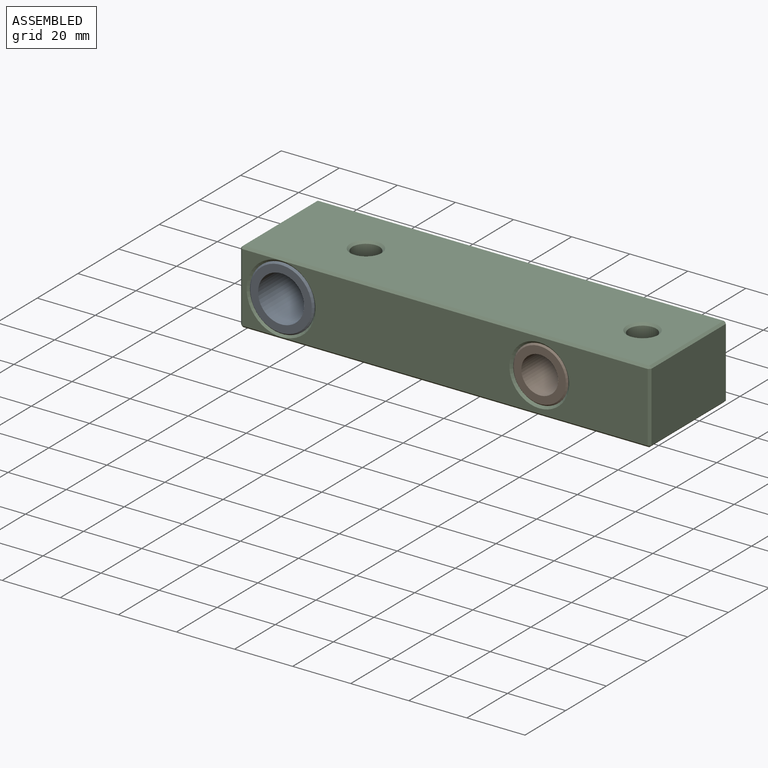
[diagram: assembled view]
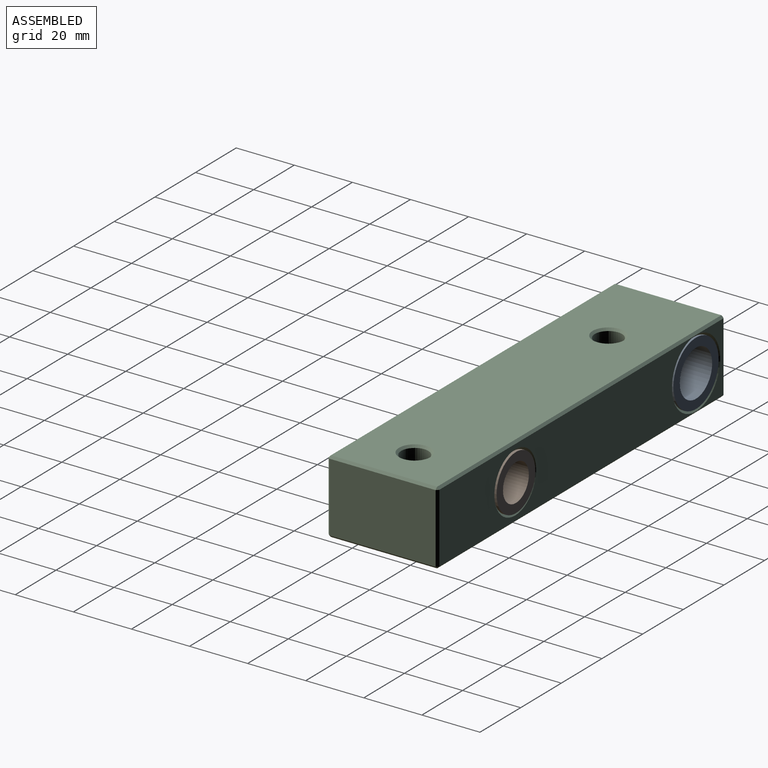
[diagram: assembled view, second angle]
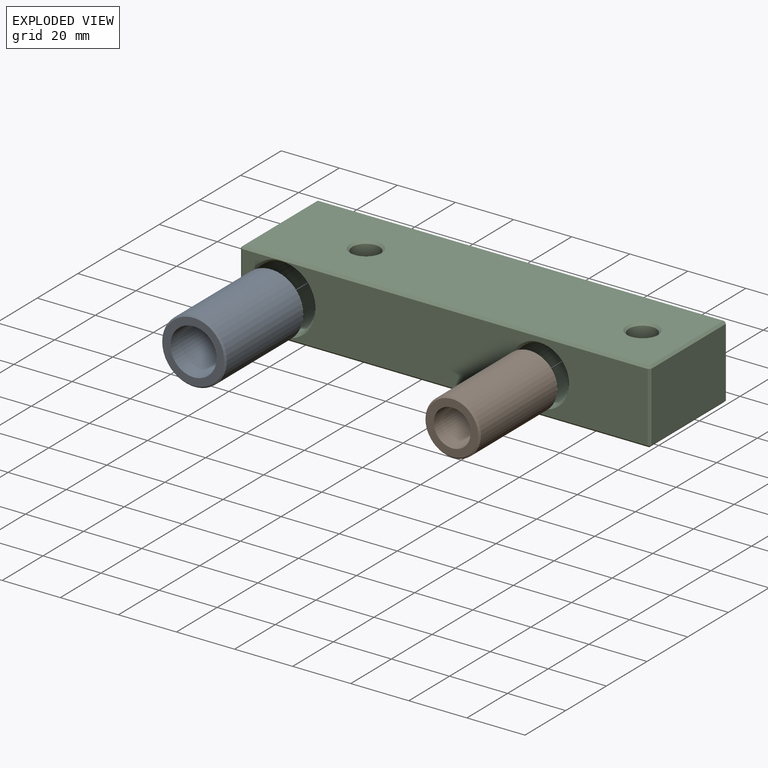
[diagram: exploded view]
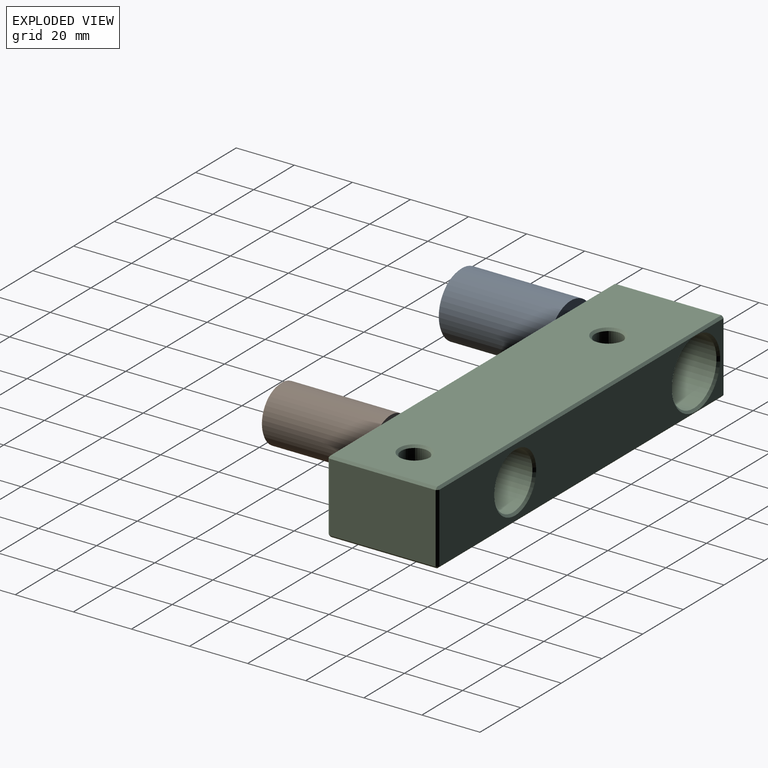
[diagram: exploded view, second angle]
ASSEMBLY  parts=3 mates=2
PART A: 5 faces, bbox 22.2x38.1x22.2 mm
  f0: plane 21.17x21.17mm, normal (0,-1,0), area 153.9mm2, adj f3,f4
  f1: plane 22.23x22.23mm, normal (0,1,0), area 190mm2, adj f2,f3
  f2: cylinder r=11.11mm len=37.57mm, axis (0,1,0), area 2623.3mm2, adj f1,f4
  f3: cylinder r=7.94mm len=38.1mm, axis (0,1,0), area 1900.2mm2, adj f0,f1
  f4: cone r=10.58mm half-angle=45deg, axis (0,1,0), area 51mm2, adj f0,f2
PART B: 5 faces, bbox 19.1x38.1x19.1 mm
  f0: plane 17.99x17.99mm, normal (0,-1,0), area 127.6mm2, adj f3,f4
  f1: plane 19.05x19.05mm, normal (0,1,0), area 158.3mm2, adj f2,f3
  f2: cylinder r=9.53mm len=37.57mm, axis (0,1,0), area 2248.5mm2, adj f1,f4
  f3: cylinder r=6.35mm len=38.1mm, axis (0,1,0), area 1520.1mm2, adj f0,f1
  f4: cone r=9mm half-angle=45deg, axis (0,1,0), area 43.5mm2, adj f0,f2
PART C: 38 faces, bbox 141.3x38.1x25.4 mm
  f0: plane 36.58x23.88mm, normal (-1,0,0), area 873.3mm2, adj f12,f16,f17,f18
  f1: plane 139.76x36.58mm, normal (0,0,-1), area 4926.3mm2, adj f18,f19,f27,f28,f34,f35
  f2: plane 36.58x23.88mm, normal (1,0,0), area 873.3mm2, adj f20,f25,f28,f31
  f3: plane 139.76x36.58mm, normal (0,0,1), area 4926.3mm2, adj f15,f16,f25,f26,f36,f37
  f4: plane 139.76x23.88mm, normal (0,1,0), area 2561.6mm2, adj f10,f11,f17,f26,f27,f31
  f5: plane 139.76x23.88mm, normal (0,-1,0), area 2561.6mm2, adj f12,f15,f19,f20,f32,f33
  f6: cylinder r=11.11mm len=36.58mm, axis (0,-1,0), area 2553.8mm2, adj f11,f33
  f7: cylinder r=9.53mm len=36.58mm, axis (0,-1,0), area 2189mm2, adj f10,f32
  f8: cylinder r=4.67mm len=23.88mm, axis (0,0,1), area 701.1mm2, adj f34,f36
  f9: cylinder r=4.67mm len=23.88mm, axis (0,0,1), area 701.1mm2, adj f35,f37
  f10: cone r=9.53mm half-angle=45deg, axis (0,1,0), area 67.1mm2, adj f4,f7
  f11: cone r=11.11mm half-angle=45deg, axis (0,1,0), area 77.8mm2, adj f4,f6
  f12: plane 23.88x0.76mm, normal (-0.71,-0.71,0), area 25.7mm2, adj f0,f5,f13,f14
  f13: plane 0.76x0.76mm, normal (-0.58,-0.58,0.58), area 0.5mm2, adj f12,f15,f16
  f14: plane 0.76x0.76mm, normal (-0.58,-0.58,-0.58), area 0.5mm2, adj f12,f18,f19
  f15: plane 139.76x0.76mm, normal (0,-0.71,0.71), area 150.6mm2, adj f3,f5,f13,f21
  f16: plane 36.58x0.76mm, normal (-0.71,0,0.71), area 39.4mm2, adj f0,f3,f13,f22
  f17: plane 23.88x0.76mm, normal (-0.71,0.71,0), area 25.7mm2, adj f0,f4,f22,f23
  f18: plane 36.58x0.76mm, normal (-0.71,0,-0.71), area 39.4mm2, adj f0,f1,f14,f23
  f19: plane 139.76x0.76mm, normal (0,-0.71,-0.71), area 150.6mm2, adj f1,f5,f14,f24
  f20: plane 23.88x0.76mm, normal (0.71,-0.71,0), area 25.7mm2, adj f2,f5,f21,f24
  f21: plane 0.76x0.76mm, normal (0.58,-0.58,0.58), area 0.5mm2, adj f15,f20,f25
  f22: plane 0.76x0.76mm, normal (-0.58,0.58,0.58), area 0.5mm2, adj f16,f17,f26
  f23: plane 0.76x0.76mm, normal (-0.58,0.58,-0.58), area 0.5mm2, adj f17,f18,f27
  f24: plane 0.76x0.76mm, normal (0.58,-0.58,-0.58), area 0.5mm2, adj f19,f20,f28
  f25: plane 36.58x0.76mm, normal (0.71,0,0.71), area 39.4mm2, adj f2,f3,f21,f29
  f26: plane 139.76x0.76mm, normal (0,0.71,0.71), area 150.6mm2, adj f3,f4,f22,f29
  f27: plane 139.76x0.76mm, normal (0,0.71,-0.71), area 150.6mm2, adj f1,f4,f23,f30
  f28: plane 36.58x0.76mm, normal (0.71,0,-0.71), area 39.4mm2, adj f1,f2,f24,f30
  f29: plane 0.76x0.76mm, normal (0.58,0.58,0.58), area 0.5mm2, adj f25,f26,f31
  f30: plane 0.76x0.76mm, normal (0.58,0.58,-0.58), area 0.5mm2, adj f27,f28,f31
  f31: plane 23.88x0.76mm, normal (0.71,0.71,0), area 25.7mm2, adj f2,f4,f29,f30
  f32: cone r=9.53mm half-angle=45deg, axis (0,-1,0), area 67.1mm2, adj f5,f7
  f33: cone r=11.11mm half-angle=45deg, axis (0,-1,0), area 77.8mm2, adj f5,f6
  f34: cone r=5.44mm half-angle=45deg, axis (0,0,-1), area 34.2mm2, adj f1,f8
  f35: cone r=5.44mm half-angle=45deg, axis (0,0,-1), area 34.2mm2, adj f1,f9
  f36: cone r=4.67mm half-angle=45deg, axis (0,0,1), area 34.2mm2, adj f3,f8
  f37: cone r=4.67mm half-angle=45deg, axis (0,0,1), area 34.2mm2, adj f3,f9
PLACE A t=(-44.96,11.84,-0.91)mm
PLACE B t=(43.94,12.08,-0.91)mm
PLACE C t=(43.94,-7.21,-0.91)mm fixed
MATE fastened B.f2 <-> C.f7  axis (0,1,0) through (43.94,-6.45,-0.91)mm
MATE fastened A.f2 <-> C.f6  axis (0,-1,0) through (-44.96,-7.21,-0.91)mm
